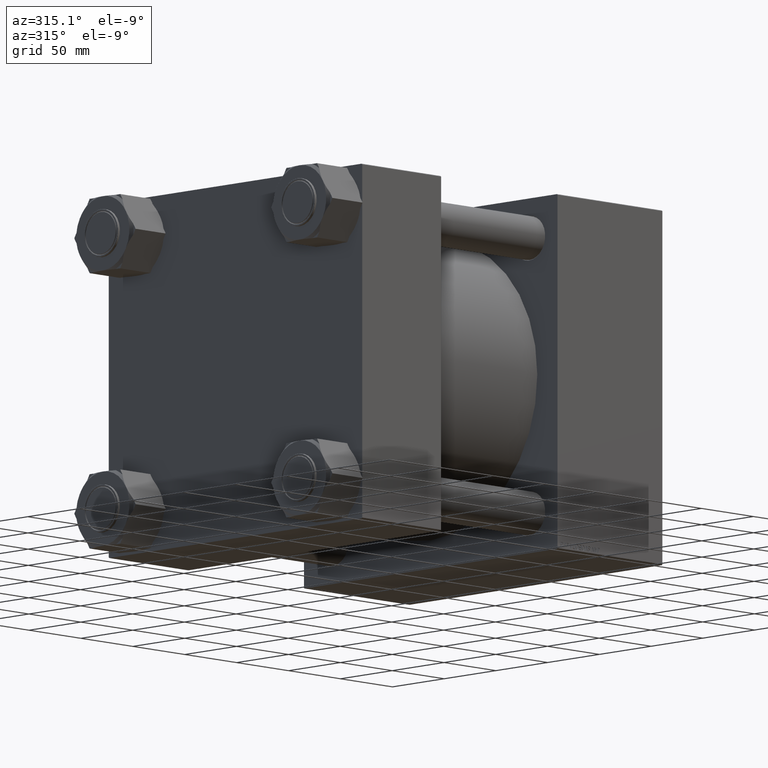
[diagram: clean part render]
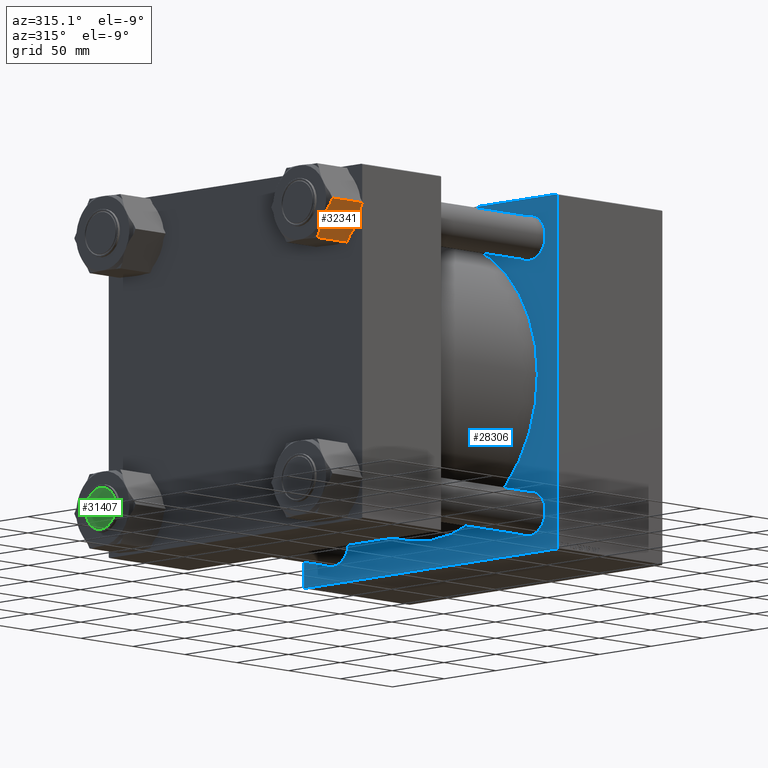
[diagram: same view with three faces highlighted in distinct colors, each labeled with its STEP entity id]
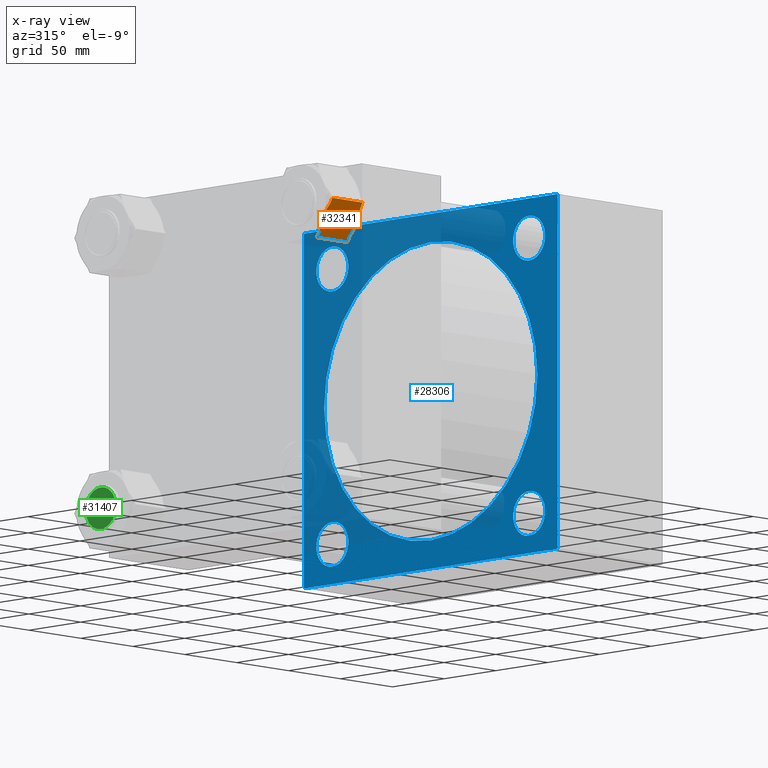
[diagram: x-ray of the same camera — body ghosted, the three highlighted faces saturated]
A machine part, auxiliary view with three faces highlighted in distinct colors.
The next image is the same camera in x-ray (body ghosted, the three faces saturated) — at least one of them is partly hidden behind the body in this view.
Their STEP definitions:

[orange] entity #32341 — the highlighted planar face has unit normal (-0, 0.866, 0.5).
#378 = AXIS2_PLACEMENT_3D ( 'NONE', #37311, #48099, #20914 ) ;
#515 = B_SPLINE_CURVE_WITH_KNOTS ( 'NONE', 3,
 ( #27525, #31886, #47532, #43912, #12145, #40077 ),
 .UNSPECIFIED., .F., .F.,
 ( 4, 2, 4 ),
 ( 0.01051765955737597041, 0.01578241387615344007, 0.02104716819493090973 ),
 .UNSPECIFIED. ) ;
#829 = EDGE_CURVE ( 'NONE', #43507, #5416, #12755, .T. ) ;
#1455 = VERTEX_POINT ( 'NONE', #45876 ) ;
#1584 = VERTEX_POINT ( 'NONE', #47403 ) ;
#1804 = CARTESIAN_POINT ( 'NONE',  ( 26.54466212044818363, 5.326641457824901060, -31.62197758747890930 ) ) ;
#2408 = VERTEX_POINT ( 'NONE', #10961 ) ;
#3762 = LINE ( 'NONE', #19403, #6872 ) ;
#4090 = CARTESIAN_POINT ( 'NONE',  ( 24.41248883551437032, 9.019673917871283919, -0.3601606535146220089 ) ) ;
#4602 = ORIENTED_EDGE ( 'NONE', *, *, #14983, .F. ) ;
#5275 = PLANE ( 'NONE',  #378 ) ;
#5371 = B_SPLINE_CURVE_WITH_KNOTS ( 'NONE', 3,
 ( #41516, #13857, #18197, #36921, #1804, #33813 ),
 .UNSPECIFIED., .F., .F.,
 ( 4, 2, 4 ),
 ( 0.01051765955737592358, 0.01578241387615337762, 0.02104716819493083341 ),
 .UNSPECIFIED. ) ;
#5416 = VERTEX_POINT ( 'NONE', #25427 ) ;
#5710 = VECTOR ( 'NONE', #37666, 1000.000000000000114 ) ;
#5887 = LINE ( 'NONE', #22032, #5710 ) ;
#6493 = CARTESIAN_POINT ( 'NONE',  ( 21.32649141810932747, 14.36477823684317734, -32.95327330804746424 ) ) ;
#6872 = VECTOR ( 'NONE', #35028, 1000.000000000000114 ) ;
#7565 = ORIENTED_EDGE ( 'NONE', *, *, #49274, .F. ) ;
#7661 = CARTESIAN_POINT ( 'NONE',  ( 26.54539380551817374, 5.325374142108530329, -1.378568830542540313 ) ) ;
#8047 = VERTEX_POINT ( 'NONE', #10485 ) ;
#8346 = CARTESIAN_POINT ( 'NONE',  ( 29.62000000000000810, -6.572692906582623186E-15, -33.00000000000000000 ) ) ;
#10485 = CARTESIAN_POINT ( 'NONE',  ( 29.62000000000000810, -6.572692906582623186E-15, -2.000000000000001776 ) ) ;
#10961 = CARTESIAN_POINT ( 'NONE',  ( 27.37752578299570416, 3.884079278514688927, -2.000000000000000000 ) ) ;
#11512 = CARTESIAN_POINT ( 'NONE',  ( 27.37752578299570416, 3.884079278514688927, -2.000000000000000000 ) ) ;
#11700 = ORIENTED_EDGE ( 'NONE', *, *, #48517, .F. ) ;
#12145 = CARTESIAN_POINT ( 'NONE',  ( 17.88533787955183385, 20.32503100227017612, -1.378022412521090478 ) ) ;
#12444 = DIRECTION ( 'NONE',  ( -0.000000000000000000, -0.000000000000000000, 1.000000000000000000 ) ) ;
#12755 = LINE ( 'NONE', #35584, #38009 ) ;
#13857 = CARTESIAN_POINT ( 'NONE',  ( 23.10724479875434412, 11.28042290581595175, -32.99999999999998579 ) ) ;
#13940 = VERTEX_POINT ( 'NONE', #30524 ) ;
#14576 = EDGE_CURVE ( 'NONE', #1455, #8047, #16315, .T. ) ;
#14983 = EDGE_CURVE ( 'NONE', #13940, #1584, #5371, .T. ) ;
#16315 = LINE ( 'NONE', #8346, #25017 ) ;
#16865 = ORIENTED_EDGE ( 'NONE', *, *, #31419, .F. ) ;
#17459 = ORIENTED_EDGE ( 'NONE', *, *, #36845, .F. ) ;
#17795 = CARTESIAN_POINT ( 'NONE',  ( 17.88460619448185440, 20.32629831798652376, -31.62143116945745902 ) ) ;
#18197 = CARTESIAN_POINT ( 'NONE',  ( 23.98159980063226016, 9.765995618711439619, -32.81261637259790831 ) ) ;
#18914 = VERTEX_POINT ( 'NONE', #25396 ) ;
#19403 = CARTESIAN_POINT ( 'NONE',  ( 14.81000000000000583, 25.65167246009508872, -2.000000000000001776 ) ) ;
#20914 = DIRECTION ( 'NONE',  ( 0.4999999999999997224, -0.8660254037844388186, 0.000000000000000000 ) ) ;
#21694 = LINE ( 'NONE', #37833, #49142 ) ;
#22032 = CARTESIAN_POINT ( 'NONE',  ( 14.81000000000000583, 25.65167246009508872, -31.00000000000000000 ) ) ;
#22227 = ORIENTED_EDGE ( 'NONE', *, *, #829, .T. ) ;
#22330 = CARTESIAN_POINT ( 'NONE',  ( 22.21500000000001762, 12.82583623004753726, 0.000000000000000000 ) ) ;
#22988 = ORIENTED_EDGE ( 'NONE', *, *, #28771, .F. ) ;
#23299 = CARTESIAN_POINT ( 'NONE',  ( 25.70144162350698025, 6.787142200510530188, -0.8774574461467135045 ) ) ;
#24268 = ORIENTED_EDGE ( 'NONE', *, *, #14576, .F. ) ;
#25017 = VECTOR ( 'NONE', #12444, 1000.000000000000000 ) ;
#25396 = CARTESIAN_POINT ( 'NONE',  ( 17.05247421700432398, 21.76759318158037715, -2.000000000000000000 ) ) ;
#25427 = CARTESIAN_POINT ( 'NONE',  ( 14.81000000000000583, 25.65167246009508872, -2.000000000000001776 ) ) ;
#25716 = CARTESIAN_POINT ( 'NONE',  ( 17.05247421700433108, 21.76759318158035938, -31.00000000000000000 ) ) ;
#25854 = EDGE_CURVE ( 'NONE', #18914, #5416, #41395, .T. ) ;
#25975 = CARTESIAN_POINT ( 'NONE',  ( 20.45100301642624174, 15.88116862999554968, -32.77317423454463352 ) ) ;
#27382 = DIRECTION ( 'NONE',  ( -0.000000000000000000, -0.000000000000000000, 1.000000000000000000 ) ) ;
#27525 = CARTESIAN_POINT ( 'NONE',  ( 22.21500000000001762, 12.82583623004753726, 0.000000000000000000 ) ) ;
#28406 = VERTEX_POINT ( 'NONE', #49454 ) ;
#28725 = ORIENTED_EDGE ( 'NONE', *, *, #34477, .F. ) ;
#28771 = EDGE_CURVE ( 'NONE', #1584, #1455, #21694, .T. ) ;
#29061 = CARTESIAN_POINT ( 'NONE',  ( 21.76940353278334328, 13.59763195093999855, -32.99999999999999289 ) ) ;
#30524 = CARTESIAN_POINT ( 'NONE',  ( 22.21500000000000696, 12.82583623004752837, -33.00000000000000000 ) ) ;
#31419 = EDGE_CURVE ( 'NONE', #8047, #2408, #3762, .T. ) ;
#31558 = EDGE_LOOP ( 'NONE', ( #7565, #22227, #34869, #28725, #17459, #16865, #24268, #22988, #4602, #11700 ) ) ;
#31886 = CARTESIAN_POINT ( 'NONE',  ( 21.32275520124567336, 14.37124955427912454, 5.519266684309019432E-15 ) ) ;
#32017 = CARTESIAN_POINT ( 'NONE',  ( 22.21500000000001762, 12.82583623004753726, 0.000000000000000000 ) ) ;
#32341 = ADVANCED_FACE ( 'NONE', ( #49124 ), #5275, .F. ) ;
#32757 = CARTESIAN_POINT ( 'NONE',  ( 22.66059646721667065, 12.05404050915506708, 5.753047777751207114E-15 ) ) ;
#33416 = CARTESIAN_POINT ( 'NONE',  ( 18.72855837649304434, 18.86453025958451946, -32.12254255385326474 ) ) ;
#33813 = CARTESIAN_POINT ( 'NONE',  ( 27.37752578299569350, 3.884079278514706246, -31.00000000000000000 ) ) ;
#33912 = CARTESIAN_POINT ( 'NONE',  ( 22.21500000000000696, 12.82583623004752837, -33.00000000000000000 ) ) ;
#34477 = EDGE_CURVE ( 'NONE', #49049, #18914, #515, .T. ) ;
#34869 = ORIENTED_EDGE ( 'NONE', *, *, #25854, .F. ) ;
#35028 = DIRECTION ( 'NONE',  ( -0.4999999999999997224, 0.8660254037844388186, 0.000000000000000000 ) ) ;
#35584 = CARTESIAN_POINT ( 'NONE',  ( 14.81000000000000583, 25.65167246009508872, -33.00000000000000000 ) ) ;
#35865 = CARTESIAN_POINT ( 'NONE',  ( 23.97899698357378284, 9.770503830099508846, -0.2268257654553568481 ) ) ;
#36798 = CARTESIAN_POINT ( 'NONE',  ( 14.81000000000000583, 25.65167246009508872, -2.000000000000001776 ) ) ;
#36845 = EDGE_CURVE ( 'NONE', #2408, #49049, #43068, .T. ) ;
#36858 = CARTESIAN_POINT ( 'NONE',  ( 23.10350858189069001, 11.28689422325188829, -0.04672669195252834168 ) ) ;
#36921 = CARTESIAN_POINT ( 'NONE',  ( 25.70026653993363652, 6.789177504962706777, -32.12316606625578430 ) ) ;
#37311 = CARTESIAN_POINT ( 'NONE',  ( 14.81000000000000583, 25.65167246009508872, -33.00000000000000000 ) ) ;
#37584 = DIRECTION ( 'NONE',  ( 0.4999999999999997224, -0.8660254037844388186, 0.000000000000000000 ) ) ;
#37666 = DIRECTION ( 'NONE',  ( 0.4999999999999997224, -0.8660254037844388186, 0.000000000000000000 ) ) ;
#37803 = DIRECTION ( 'NONE',  ( -0.4999999999999997224, 0.8660254037844388186, 0.000000000000000000 ) ) ;
#37833 = CARTESIAN_POINT ( 'NONE',  ( 14.81000000000000583, 25.65167246009508872, -31.00000000000000000 ) ) ;
#38009 = VECTOR ( 'NONE', #27382, 1000.000000000000000 ) ;
#38103 = CARTESIAN_POINT ( 'NONE',  ( 14.81000000000000583, 25.65167246009508872, -31.00000000000000000 ) ) ;
#40077 = CARTESIAN_POINT ( 'NONE',  ( 17.05247421700432398, 21.76759318158037715, -2.000000000000000000 ) ) ;
#41395 = LINE ( 'NONE', #36798, #41659 ) ;
#41516 = CARTESIAN_POINT ( 'NONE',  ( 22.21500000000000696, 12.82583623004752837, -33.00000000000000000 ) ) ;
#41620 = B_SPLINE_CURVE_WITH_KNOTS ( 'NONE', 3,
 ( #25716, #17795, #33416, #45211, #25975, #6493, #29061, #33912 ),
 .UNSPECIFIED., .F., .F.,
 ( 4, 2, 2, 4 ),
 ( 5.641212978129335099E-07, 0.005259111839336867711, 0.007888385698356396511, 0.01051765955737592358 ),
 .UNSPECIFIED. ) ;
#41659 = VECTOR ( 'NONE', #37803, 1000.000000000000114 ) ;
#43068 = B_SPLINE_CURVE_WITH_KNOTS ( 'NONE', 3,
 ( #11512, #7661, #23299, #4090, #35865, #36858, #32757, #32017 ),
 .UNSPECIFIED., .F., .F.,
 ( 4, 2, 2, 4 ),
 ( 5.641212978359122432E-07, 0.005259111839336905875, 0.007888385698356438144, 0.01051765955737597041 ),
 .UNSPECIFIED. ) ;
#43507 = VERTEX_POINT ( 'NONE', #38103 ) ;
#43912 = CARTESIAN_POINT ( 'NONE',  ( 18.72973346006637385, 18.86249495513238017, -0.8768339337442039305 ) ) ;
#45211 = CARTESIAN_POINT ( 'NONE',  ( 20.01751116448565426, 16.63199854222377994, -32.63983934648538110 ) ) ;
#45876 = CARTESIAN_POINT ( 'NONE',  ( 29.62000000000000810, -6.572692906582623186E-15, -31.00000000000000000 ) ) ;
#47403 = CARTESIAN_POINT ( 'NONE',  ( 27.37752578299569350, 3.884079278514706246, -31.00000000000000000 ) ) ;
#47532 = CARTESIAN_POINT ( 'NONE',  ( 20.44840019936776798, 15.88567684138364200, -0.1873836274020712622 ) ) ;
#48099 = DIRECTION ( 'NONE',  ( -0.8660254037844388186, -0.4999999999999997224, 0.000000000000000000 ) ) ;
#48517 = EDGE_CURVE ( 'NONE', #28406, #13940, #41620, .T. ) ;
#49049 = VERTEX_POINT ( 'NONE', #22330 ) ;
#49124 = FACE_OUTER_BOUND ( 'NONE', #31558, .T. ) ;
#49142 = VECTOR ( 'NONE', #37584, 1000.000000000000114 ) ;
#49274 = EDGE_CURVE ( 'NONE', #43507, #28406, #5887, .T. ) ;
#49454 = CARTESIAN_POINT ( 'NONE',  ( 17.05247421700433108, 21.76759318158035938, -31.00000000000000000 ) ) ;

[blue] entity #28306 — the highlighted planar face has unit normal (-1, 0, 0).
#200 = LINE ( 'NONE', #27627, #3010 ) ;
#264 = VERTEX_POINT ( 'NONE', #49016 ) ;
#339 = EDGE_CURVE ( 'NONE', #3642, #26700, #30635, .T. ) ;
#1229 = CARTESIAN_POINT ( 'NONE',  ( 188.0000000000000000, -95.09999999999996589, -95.10000000000000853 ) ) ;
#1961 = AXIS2_PLACEMENT_3D ( 'NONE', #30482, #6396, #29722 ) ;
#2076 = DIRECTION ( 'NONE',  ( 0.000000000000000000, 0.000000000000000000, 1.000000000000000000 ) ) ;
#2128 = VERTEX_POINT ( 'NONE', #12615 ) ;
#2418 = ORIENTED_EDGE ( 'NONE', *, *, #13127, .T. ) ;
#2445 = LINE ( 'NONE', #21163, #34918 ) ;
#3010 = VECTOR ( 'NONE', #31731, 1000.000000000000000 ) ;
#3642 = VERTEX_POINT ( 'NONE', #22647 ) ;
#4138 = DIRECTION ( 'NONE',  ( 1.000000000000000000, -0.000000000000000000, -0.000000000000000000 ) ) ;
#4214 = ORIENTED_EDGE ( 'NONE', *, *, #20930, .T. ) ;
#4571 = CIRCLE ( 'NONE', #16086, 15.50000000000000000 ) ;
#4592 = CARTESIAN_POINT ( 'NONE',  ( 188.0000000000000000, 122.4999999999999716, -121.9999999999999858 ) ) ;
#4784 = CARTESIAN_POINT ( 'NONE',  ( 188.0000000000000000, -95.09999999999996589, 95.10000000000000853 ) ) ;
#5120 = FACE_BOUND ( 'NONE', #14987, .T. ) ;
#5334 = CIRCLE ( 'NONE', #25818, 15.50000000000000000 ) ;
#5620 = ORIENTED_EDGE ( 'NONE', *, *, #15133, .T. ) ;
#5974 = CARTESIAN_POINT ( 'NONE',  ( 188.0000000000000000, -122.2500000000000000, 122.2500000000000000 ) ) ;
#6005 = CARTESIAN_POINT ( 'NONE',  ( 188.0000000000000000, 122.4999999999999716, -122.5000000000000000 ) ) ;
#6182 = DIRECTION ( 'NONE',  ( 0.000000000000000000, 0.000000000000000000, 1.000000000000000000 ) ) ;
#6281 = DIRECTION ( 'NONE',  ( -0.000000000000000000, -0.7071067811865376918, -0.7071067811865574537 ) ) ;
#6396 = DIRECTION ( 'NONE',  ( 1.000000000000000000, -0.000000000000000000, -0.000000000000000000 ) ) ;
#6632 = DIRECTION ( 'NONE',  ( 0.000000000000000000, 0.000000000000000000, -1.000000000000000000 ) ) ;
#6774 = EDGE_CURVE ( 'NONE', #26379, #21830, #23263, .T. ) ;
#6957 = VERTEX_POINT ( 'NONE', #4592 ) ;
#7140 = CARTESIAN_POINT ( 'NONE',  ( 188.0000000000000000, -122.0000000000000000, -122.5000000000000853 ) ) ;
#7170 = EDGE_LOOP ( 'NONE', ( #22251, #2418 ) ) ;
#7735 = EDGE_CURVE ( 'NONE', #22572, #14230, #49095, .T. ) ;
#7753 = CARTESIAN_POINT ( 'NONE',  ( 188.0000000000000000, 95.09999999999999432, -95.09999999999998010 ) ) ;
#8016 = VERTEX_POINT ( 'NONE', #41515 ) ;
#9329 = ORIENTED_EDGE ( 'NONE', *, *, #41746, .F. ) ;
#9605 = ORIENTED_EDGE ( 'NONE', *, *, #32647, .T. ) ;
#9760 = CARTESIAN_POINT ( 'NONE',  ( 188.0000000000000000, 95.09999999999999432, 95.09999999999998010 ) ) ;
#9862 = ORIENTED_EDGE ( 'NONE', *, *, #13367, .F. ) ;
#9915 = EDGE_LOOP ( 'NONE', ( #30147, #33192 ) ) ;
#10024 = CARTESIAN_POINT ( 'NONE',  ( 188.0000000000000000, 95.09999999999999432, -95.09999999999998010 ) ) ;
#10227 = LINE ( 'NONE', #41507, #39173 ) ;
#11090 = DIRECTION ( 'NONE',  ( 0.000000000000000000, 0.000000000000000000, -1.000000000000000000 ) ) ;
#11093 = DIRECTION ( 'NONE',  ( 0.000000000000000000, 0.000000000000000000, 1.000000000000000000 ) ) ;
#11595 = CIRCLE ( 'NONE', #22244, 103.0000000000000000 ) ;
#12524 = DIRECTION ( 'NONE',  ( 0.000000000000000000, 0.000000000000000000, 1.000000000000000000 ) ) ;
#12563 = FACE_BOUND ( 'NONE', #7170, .T. ) ;
#12615 = CARTESIAN_POINT ( 'NONE',  ( 188.0000000000000000, -122.5000000000000142, -122.0000000000000995 ) ) ;
#12711 = ORIENTED_EDGE ( 'NONE', *, *, #6774, .T. ) ;
#12731 = VECTOR ( 'NONE', #31802, 1000.000000000000000 ) ;
#12818 = LINE ( 'NONE', #28448, #12731 ) ;
#13127 = EDGE_CURVE ( 'NONE', #22012, #264, #5334, .T. ) ;
#13316 = DIRECTION ( 'NONE',  ( 0.000000000000000000, 0.000000000000000000, 1.000000000000000000 ) ) ;
#13367 = EDGE_CURVE ( 'NONE', #49248, #43764, #12818, .T. ) ;
#13409 = ORIENTED_EDGE ( 'NONE', *, *, #41972, .T. ) ;
#13545 = VERTEX_POINT ( 'NONE', #19177 ) ;
#13852 = VERTEX_POINT ( 'NONE', #16986 ) ;
#14230 = VERTEX_POINT ( 'NONE', #7140 ) ;
#14950 = DIRECTION ( 'NONE',  ( 0.000000000000000000, 0.7071067811865474617, -0.7071067811865474617 ) ) ;
#14987 = EDGE_LOOP ( 'NONE', ( #12711, #5620 ) ) ;
#15133 = EDGE_CURVE ( 'NONE', #21830, #26379, #4571, .T. ) ;
#15468 = CARTESIAN_POINT ( 'NONE',  ( 188.0000000000000000, -2.602085213965210642E-15, 0.000000000000000000 ) ) ;
#16086 = AXIS2_PLACEMENT_3D ( 'NONE', #1229, #32251, #12524 ) ;
#16471 = CARTESIAN_POINT ( 'NONE',  ( 188.0000000000000000, -95.09999999999996589, -79.60000000000000853 ) ) ;
#16986 = CARTESIAN_POINT ( 'NONE',  ( 188.0000000000000000, -95.09999999999996589, 110.6000000000000085 ) ) ;
#17169 = FACE_BOUND ( 'NONE', #9915, .T. ) ;
#17395 = ORIENTED_EDGE ( 'NONE', *, *, #339, .T. ) ;
#17735 = CARTESIAN_POINT ( 'NONE',  ( 188.0000000000000000, 1.001177681725252697E-14, -103.0000000000000000 ) ) ;
#18537 = CARTESIAN_POINT ( 'NONE',  ( 188.0000000000000000, 122.2499999999999858, 122.2499999999999858 ) ) ;
#19177 = CARTESIAN_POINT ( 'NONE',  ( 188.0000000000000000, -122.5000000000000000, 122.0000000000000426 ) ) ;
#20004 = EDGE_CURVE ( 'NONE', #264, #22012, #46501, .T. ) ;
#20121 = CARTESIAN_POINT ( 'NONE',  ( 188.0000000000000000, 95.09999999999999432, 95.09999999999998010 ) ) ;
#20277 = CARTESIAN_POINT ( 'NONE',  ( 188.0000000000000000, -2.602085213965210642E-15, 0.000000000000000000 ) ) ;
#20700 = VERTEX_POINT ( 'NONE', #34721 ) ;
#20930 = EDGE_CURVE ( 'NONE', #49248, #20700, #41854, .T. ) ;
#20955 = EDGE_LOOP ( 'NONE', ( #17395, #13409 ) ) ;
#21163 = CARTESIAN_POINT ( 'NONE',  ( 188.0000000000000000, 122.2500000000016911, -122.2499999999982947 ) ) ;
#21551 = DIRECTION ( 'NONE',  ( 1.000000000000000000, -0.000000000000000000, -0.000000000000000000 ) ) ;
#21641 = DIRECTION ( 'NONE',  ( 0.000000000000000000, -1.000000000000000000, -3.398641912117826466E-16 ) ) ;
#21830 = VERTEX_POINT ( 'NONE', #42331 ) ;
#21849 = AXIS2_PLACEMENT_3D ( 'NONE', #7753, #23398, #11093 ) ;
#22012 = VERTEX_POINT ( 'NONE', #25132 ) ;
#22244 = AXIS2_PLACEMENT_3D ( 'NONE', #20277, #28947, #33045 ) ;
#22251 = ORIENTED_EDGE ( 'NONE', *, *, #20004, .T. ) ;
#22470 = VECTOR ( 'NONE', #44186, 1000.000000000000114 ) ;
#22572 = VERTEX_POINT ( 'NONE', #40083 ) ;
#22647 = CARTESIAN_POINT ( 'NONE',  ( 188.0000000000000000, 95.09999999999999432, -79.59999999999998010 ) ) ;
#22829 = CIRCLE ( 'NONE', #44938, 103.0000000000000000 ) ;
#22895 = DIRECTION ( 'NONE',  ( 1.000000000000000000, 0.000000000000000000, 0.000000000000000000 ) ) ;
#23008 = CARTESIAN_POINT ( 'NONE',  ( 188.0000000000000000, 95.09999999999999432, -110.5999999999999801 ) ) ;
#23261 = AXIS2_PLACEMENT_3D ( 'NONE', #10024, #25658, #6182 ) ;
#23263 = CIRCLE ( 'NONE', #1961, 15.50000000000000000 ) ;
#23398 = DIRECTION ( 'NONE',  ( 1.000000000000000000, -0.000000000000000000, -0.000000000000000000 ) ) ;
#24424 = VECTOR ( 'NONE', #14950, 1000.000000000000114 ) ;
#24547 = EDGE_CURVE ( 'NONE', #8016, #13852, #49959, .T. ) ;
#24702 = EDGE_CURVE ( 'NONE', #20700, #6957, #10227, .T. ) ;
#24844 = PLANE ( 'NONE',  #37673 ) ;
#24950 = LINE ( 'NONE', #5974, #22470 ) ;
#24965 = ORIENTED_EDGE ( 'NONE', *, *, #30909, .T. ) ;
#25132 = CARTESIAN_POINT ( 'NONE',  ( 188.0000000000000000, 95.09999999999999432, 79.59999999999998010 ) ) ;
#25658 = DIRECTION ( 'NONE',  ( 1.000000000000000000, -0.000000000000000000, -0.000000000000000000 ) ) ;
#25818 = AXIS2_PLACEMENT_3D ( 'NONE', #20121, #27290, #28054 ) ;
#26379 = VERTEX_POINT ( 'NONE', #16471 ) ;
#26700 = VERTEX_POINT ( 'NONE', #23008 ) ;
#26773 = EDGE_CURVE ( 'NONE', #13852, #8016, #47439, .T. ) ;
#27151 = CARTESIAN_POINT ( 'NONE',  ( 188.0000000000000000, -122.2499999999966462, -122.2500000000034390 ) ) ;
#27290 = DIRECTION ( 'NONE',  ( 1.000000000000000000, -0.000000000000000000, -0.000000000000000000 ) ) ;
#27455 = CARTESIAN_POINT ( 'NONE',  ( 188.0000000000000000, -95.09999999999996589, 95.10000000000000853 ) ) ;
#27627 = CARTESIAN_POINT ( 'NONE',  ( 188.0000000000000000, -122.5000000000000000, 122.4999999999999858 ) ) ;
#27695 = AXIS2_PLACEMENT_3D ( 'NONE', #9760, #21551, #2076 ) ;
#28054 = DIRECTION ( 'NONE',  ( 0.000000000000000000, 0.000000000000000000, 1.000000000000000000 ) ) ;
#28306 = ADVANCED_FACE ( 'NONE', ( #17169, #12563, #39994, #5120, #28447, #44084 ), #24844, .T. ) ;
#28447 = FACE_BOUND ( 'NONE', #45418, .T. ) ;
#28448 = CARTESIAN_POINT ( 'NONE',  ( 188.0000000000000000, 122.4999999999999716, 122.5000000000000142 ) ) ;
#28947 = DIRECTION ( 'NONE',  ( 1.000000000000000000, 0.000000000000000000, 0.000000000000000000 ) ) ;
#29276 = EDGE_CURVE ( 'NONE', #42199, #43997, #11595, .T. ) ;
#29722 = DIRECTION ( 'NONE',  ( 0.000000000000000000, 0.000000000000000000, 1.000000000000000000 ) ) ;
#30147 = ORIENTED_EDGE ( 'NONE', *, *, #26773, .T. ) ;
#30482 = CARTESIAN_POINT ( 'NONE',  ( 188.0000000000000000, -95.09999999999996589, -95.10000000000000853 ) ) ;
#30635 = CIRCLE ( 'NONE', #23261, 15.50000000000000000 ) ;
#30909 = EDGE_CURVE ( 'NONE', #14230, #2128, #34583, .T. ) ;
#31731 = DIRECTION ( 'NONE',  ( 0.000000000000000000, -5.664403186863042467E-17, -1.000000000000000000 ) ) ;
#31802 = DIRECTION ( 'NONE',  ( 0.000000000000000000, -1.000000000000000000, -1.132880637372608986E-16 ) ) ;
#32251 = DIRECTION ( 'NONE',  ( 1.000000000000000000, -0.000000000000000000, -0.000000000000000000 ) ) ;
#32647 = EDGE_CURVE ( 'NONE', #13545, #43764, #24950, .T. ) ;
#32797 = CARTESIAN_POINT ( 'NONE',  ( 188.0000000000000000, 0.000000000000000000, 0.000000000000000000 ) ) ;
#33045 = DIRECTION ( 'NONE',  ( 0.000000000000000000, 0.000000000000000000, -1.000000000000000000 ) ) ;
#33192 = ORIENTED_EDGE ( 'NONE', *, *, #24547, .T. ) ;
#33570 = CARTESIAN_POINT ( 'NONE',  ( 188.0000000000000000, 121.9999999999999716, 122.5000000000000142 ) ) ;
#34583 = LINE ( 'NONE', #27151, #48611 ) ;
#34721 = CARTESIAN_POINT ( 'NONE',  ( 188.0000000000000000, 122.4999999999999716, 122.0000000000000142 ) ) ;
#34918 = VECTOR ( 'NONE', #6281, 999.9999999999998863 ) ;
#37673 = AXIS2_PLACEMENT_3D ( 'NONE', #32797, #48437, #13316 ) ;
#38010 = VECTOR ( 'NONE', #21641, 1000.000000000000000 ) ;
#39173 = VECTOR ( 'NONE', #6632, 1000.000000000000000 ) ;
#39994 = FACE_BOUND ( 'NONE', #20955, .T. ) ;
#40083 = CARTESIAN_POINT ( 'NONE',  ( 188.0000000000000000, 121.9999999999999716, -122.5000000000000000 ) ) ;
#40515 = EDGE_CURVE ( 'NONE', #6957, #22572, #2445, .T. ) ;
#41451 = ORIENTED_EDGE ( 'NONE', *, *, #29276, .T. ) ;
#41507 = CARTESIAN_POINT ( 'NONE',  ( 188.0000000000000000, 122.4999999999999716, 122.5000000000000142 ) ) ;
#41515 = CARTESIAN_POINT ( 'NONE',  ( 188.0000000000000000, -95.09999999999996589, 79.60000000000000853 ) ) ;
#41610 = AXIS2_PLACEMENT_3D ( 'NONE', #27455, #4138, #43346 ) ;
#41683 = AXIS2_PLACEMENT_3D ( 'NONE', #4784, #43744, #43995 ) ;
#41746 = EDGE_CURVE ( 'NONE', #13545, #2128, #200, .T. ) ;
#41854 = LINE ( 'NONE', #18537, #24424 ) ;
#41972 = EDGE_CURVE ( 'NONE', #26700, #3642, #45599, .T. ) ;
#42199 = VERTEX_POINT ( 'NONE', #17735 ) ;
#42331 = CARTESIAN_POINT ( 'NONE',  ( 188.0000000000000000, -95.09999999999996589, -110.6000000000000085 ) ) ;
#42630 = ORIENTED_EDGE ( 'NONE', *, *, #47886, .T. ) ;
#42782 = DIRECTION ( 'NONE',  ( 0.000000000000000000, -0.7071067811865671127, 0.7071067811865279218 ) ) ;
#43346 = DIRECTION ( 'NONE',  ( 0.000000000000000000, 0.000000000000000000, 1.000000000000000000 ) ) ;
#43744 = DIRECTION ( 'NONE',  ( 1.000000000000000000, -0.000000000000000000, -0.000000000000000000 ) ) ;
#43764 = VERTEX_POINT ( 'NONE', #50268 ) ;
#43995 = DIRECTION ( 'NONE',  ( 0.000000000000000000, 0.000000000000000000, 1.000000000000000000 ) ) ;
#43997 = VERTEX_POINT ( 'NONE', #49700 ) ;
#44084 = FACE_OUTER_BOUND ( 'NONE', #44867, .T. ) ;
#44186 = DIRECTION ( 'NONE',  ( -0.000000000000000000, 0.7071067811865474617, 0.7071067811865474617 ) ) ;
#44867 = EDGE_LOOP ( 'NONE', ( #50293, #24965, #9329, #9605, #9862, #4214, #45381, #48085 ) ) ;
#44938 = AXIS2_PLACEMENT_3D ( 'NONE', #15468, #22895, #11090 ) ;
#45381 = ORIENTED_EDGE ( 'NONE', *, *, #24702, .T. ) ;
#45418 = EDGE_LOOP ( 'NONE', ( #42630, #41451 ) ) ;
#45599 = CIRCLE ( 'NONE', #21849, 15.50000000000000000 ) ;
#46501 = CIRCLE ( 'NONE', #27695, 15.50000000000000000 ) ;
#47439 = CIRCLE ( 'NONE', #41683, 15.50000000000000000 ) ;
#47886 = EDGE_CURVE ( 'NONE', #43997, #42199, #22829, .T. ) ;
#48085 = ORIENTED_EDGE ( 'NONE', *, *, #40515, .T. ) ;
#48437 = DIRECTION ( 'NONE',  ( -1.000000000000000000, 0.000000000000000000, 0.000000000000000000 ) ) ;
#48611 = VECTOR ( 'NONE', #42782, 1000.000000000000000 ) ;
#49016 = CARTESIAN_POINT ( 'NONE',  ( 188.0000000000000000, 95.09999999999999432, 110.5999999999999801 ) ) ;
#49095 = LINE ( 'NONE', #6005, #38010 ) ;
#49248 = VERTEX_POINT ( 'NONE', #33570 ) ;
#49700 = CARTESIAN_POINT ( 'NONE',  ( 188.0000000000000000, -2.602085213965210642E-15, 103.0000000000000000 ) ) ;
#49959 = CIRCLE ( 'NONE', #41610, 15.50000000000000000 ) ;
#50268 = CARTESIAN_POINT ( 'NONE',  ( 188.0000000000000000, -122.0000000000000568, 122.4999999999999858 ) ) ;
#50293 = ORIENTED_EDGE ( 'NONE', *, *, #7735, .T. ) ;

[green] entity #31407 — the highlighted planar face has unit normal (-1, 0, 0).
#446 = CIRCLE ( 'NONE', #32371, 14.50000000000006573 ) ;
#4438 = AXIS2_PLACEMENT_3D ( 'NONE', #27086, #42719, #47091 ) ;
#10507 = EDGE_CURVE ( 'NONE', #21089, #39001, #446, .T. ) ;
#11450 = PLANE ( 'NONE',  #4438 ) ;
#17496 = EDGE_CURVE ( 'NONE', #39001, #21089, #43171, .T. ) ;
#20902 = ORIENTED_EDGE ( 'NONE', *, *, #17496, .T. ) ;
#21089 = VERTEX_POINT ( 'NONE', #27233 ) ;
#21794 = CARTESIAN_POINT ( 'NONE',  ( 0.000000000000000000, 0.000000000000000000, 239.0000000000000000 ) ) ;
#22291 = DIRECTION ( 'NONE',  ( 0.000000000000000000, 0.000000000000000000, 1.000000000000000000 ) ) ;
#22394 = DIRECTION ( 'NONE',  ( 1.000000000000000000, 0.000000000000000000, 0.000000000000000000 ) ) ;
#26390 = DIRECTION ( 'NONE',  ( 1.000000000000000000, 0.000000000000000000, 0.000000000000000000 ) ) ;
#27086 = CARTESIAN_POINT ( 'NONE',  ( 0.000000000000000000, 0.000000000000000000, 239.0000000000000000 ) ) ;
#27233 = CARTESIAN_POINT ( 'NONE',  ( 14.50000000000006573, 1.806354028742349746E-15, 239.0000000000000000 ) ) ;
#28165 = EDGE_LOOP ( 'NONE', ( #20902, #44963 ) ) ;
#31407 = ADVANCED_FACE ( 'NONE', ( #36049 ), #11450, .T. ) ;
#32371 = AXIS2_PLACEMENT_3D ( 'NONE', #21794, #22291, #26390 ) ;
#34970 = AXIS2_PLACEMENT_3D ( 'NONE', #45224, #49591, #22394 ) ;
#36049 = FACE_OUTER_BOUND ( 'NONE', #28165, .T. ) ;
#39001 = VERTEX_POINT ( 'NONE', #46816 ) ;
#42719 = DIRECTION ( 'NONE',  ( 0.000000000000000000, 0.000000000000000000, 1.000000000000000000 ) ) ;
#43171 = CIRCLE ( 'NONE', #34970, 14.50000000000006573 ) ;
#44963 = ORIENTED_EDGE ( 'NONE', *, *, #10507, .T. ) ;
#45224 = CARTESIAN_POINT ( 'NONE',  ( 0.000000000000000000, 0.000000000000000000, 239.0000000000000000 ) ) ;
#46816 = CARTESIAN_POINT ( 'NONE',  ( -14.50000000000006573, 0.000000000000000000, 239.0000000000000000 ) ) ;
#47091 = DIRECTION ( 'NONE',  ( 1.000000000000000000, 0.000000000000000000, -0.000000000000000000 ) ) ;
#49591 = DIRECTION ( 'NONE',  ( 0.000000000000000000, 0.000000000000000000, 1.000000000000000000 ) ) ;